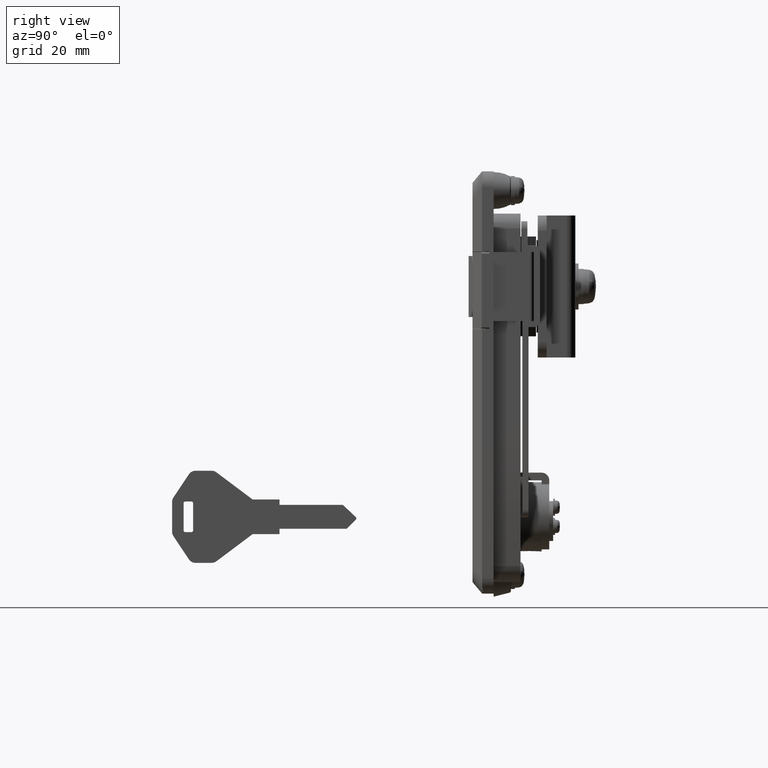
[diagram: clean part render]
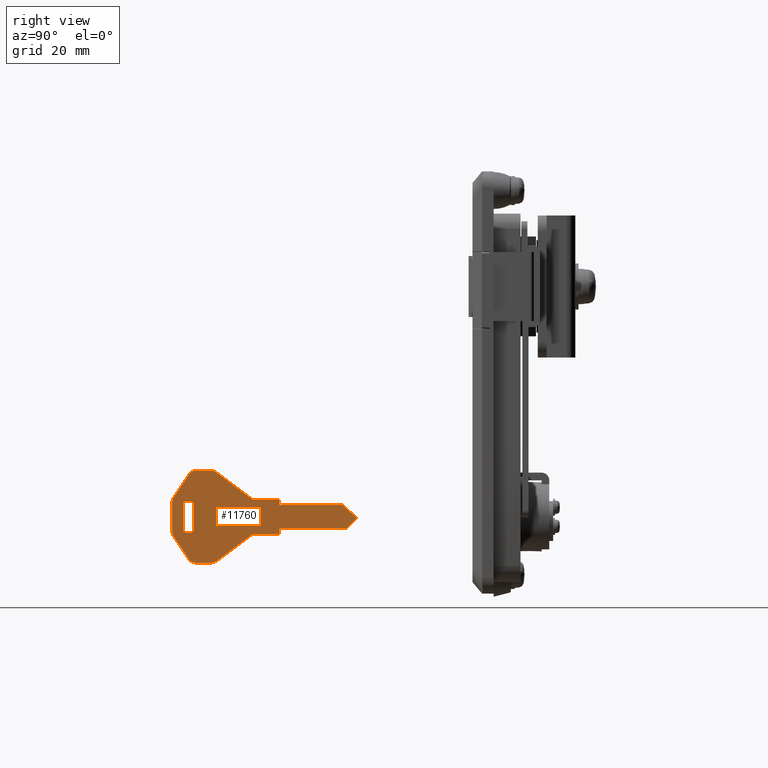
[diagram: same view with one face highlighted and labeled with its STEP entity id]
A machine part, right view. The second image highlights one B-rep face of the part: STEP entity #11760.
In plain terms, the highlighted face is a freeform B-spline surface patch.
Its self-contained STEP definition (entity closure, byte-faithful):
#11079=CARTESIAN_POINT('',(7.899445687218910,-99.565253655180996,-63.499725000000012));
#11080=VERTEX_POINT('',#11079);
#11086=CARTESIAN_POINT('',(7.899445687218901,-99.565253655180996,-56.499724999999998));
#11087=VERTEX_POINT('',#11086);
#11088=CARTESIAN_POINT('',(7.899445687218910,-99.565253655180996,-63.499725000000012));
#11089=CARTESIAN_POINT('',(7.899445687218901,-99.565253655180996,-56.499724999999998));
#11090=QUASI_UNIFORM_CURVE('',1,(#11088,#11089),.UNSPECIFIED.,.F.,.U.);
#11091=EDGE_CURVE('',#11080,#11087,#11090,.T.);
#11128=CARTESIAN_POINT('',(7.899445687218901,-100.065253655181000,-55.999724999999998));
#11129=VERTEX_POINT('',#11128);
#11130=CARTESIAN_POINT('',(7.899445687218901,-100.065253655181000,-55.999724999999998));
#11131=CARTESIAN_POINT('',(7.899445687218906,-100.007988531912700,-55.999697650880123));
#11132=CARTESIAN_POINT('',(7.899445687218900,-99.885274946405019,-56.021015053971396));
#11133=CARTESIAN_POINT('',(7.899445687218902,-99.706307156945030,-56.128103398211472));
#11134=CARTESIAN_POINT('',(7.899445687218904,-99.589298947349633,-56.303352634451670));
#11135=CARTESIAN_POINT('',(7.899445687218908,-99.565237364512569,-56.442463087033573));
#11136=CARTESIAN_POINT('',(7.899445687218901,-99.565253655180996,-56.499724999999998));
#11137=B_SPLINE_CURVE_WITH_KNOTS('',3,(#11130,#11131,#11132,#11133,#11134,#11135,#11136),.UNSPECIFIED.,.F.,.U.,(4,1,1,1,4),(0.000000517787104,0.171819318778003,0.368226022246546,0.613658140791460,0.785476941782583),.UNSPECIFIED.);
#11138=EDGE_CURVE('',#11129,#11087,#11137,.T.);
#11161=CARTESIAN_POINT('',(7.899445687218901,-101.565253655181000,-55.999724999999998));
#11162=VERTEX_POINT('',#11161);
#11163=CARTESIAN_POINT('',(7.899445687218901,-100.065253655181000,-55.999724999999998));
#11164=CARTESIAN_POINT('',(7.899445687218901,-101.565253655181000,-55.999724999999998));
#11165=QUASI_UNIFORM_CURVE('',1,(#11163,#11164),.UNSPECIFIED.,.F.,.U.);
#11166=EDGE_CURVE('',#11129,#11162,#11165,.T.);
#11203=CARTESIAN_POINT('',(7.899445687218901,-102.065253655181000,-56.499724999999998));
#11204=VERTEX_POINT('',#11203);
#11205=CARTESIAN_POINT('',(7.899445687218901,-102.065253655181000,-56.499724999999998));
#11206=CARTESIAN_POINT('',(7.899445687218913,-102.065438710248100,-56.417860551144393));
#11207=CARTESIAN_POINT('',(7.899445687218891,-102.034423087763000,-56.295326507487971));
#11208=CARTESIAN_POINT('',(7.899445687218909,-101.925246480929900,-56.140285597608496));
#11209=CARTESIAN_POINT('',(7.899445687218893,-101.777879887165300,-56.031017119049771));
#11210=CARTESIAN_POINT('',(7.899445687218905,-101.638906176441790,-55.999610051586650));
#11211=CARTESIAN_POINT('',(7.899445687218901,-101.565253655181000,-55.999724999999998));
#11212=B_SPLINE_CURVE_WITH_KNOTS('',3,(#11205,#11206,#11207,#11208,#11209,#11210,#11211),.UNSPECIFIED.,.F.,.U.,(4,1,1,1,4),(0.000000517784462,0.245475628852458,0.368226022245665,0.564557530775347,0.785476941782595),.UNSPECIFIED.);
#11213=EDGE_CURVE('',#11204,#11162,#11212,.T.);
#11236=CARTESIAN_POINT('',(7.899445687218901,-102.065253655181000,-63.499725000000012));
#11237=VERTEX_POINT('',#11236);
#11238=CARTESIAN_POINT('',(7.899445687218901,-102.065253655181000,-56.499724999999998));
#11239=CARTESIAN_POINT('',(7.899445687218901,-102.065253655181000,-63.499725000000012));
#11240=QUASI_UNIFORM_CURVE('',1,(#11238,#11239),.UNSPECIFIED.,.F.,.U.);
#11241=EDGE_CURVE('',#11204,#11237,#11240,.T.);
#11278=CARTESIAN_POINT('',(7.899445687218901,-101.565253655181000,-63.999724999999991));
#11279=VERTEX_POINT('',#11278);
#11280=CARTESIAN_POINT('',(7.899445687218901,-101.565253655181000,-63.999724999999991));
#11281=CARTESIAN_POINT('',(7.899445687218904,-101.622519621201900,-63.999752017777837));
#11282=CARTESIAN_POINT('',(7.899445687218906,-101.745250715717010,-63.978447928996907));
#11283=CARTESIAN_POINT('',(7.899445687218920,-101.909794756006510,-63.879864109005510));
#11284=CARTESIAN_POINT('',(7.899445687218829,-102.033973199008700,-63.712341357420513));
#11285=CARTESIAN_POINT('',(7.899445687218965,-102.065363855647900,-63.573378478761157));
#11286=CARTESIAN_POINT('',(7.899445687218901,-102.065253655181000,-63.499725000000012));
#11287=B_SPLINE_CURVE_WITH_KNOTS('',3,(#11280,#11281,#11282,#11283,#11284,#11285,#11286),.UNSPECIFIED.,.F.,.U.,(4,1,1,1,4),(0.000000517784649,0.171819318775870,0.368226022245225,0.564557530775109,0.785476941782665),.UNSPECIFIED.);
#11288=EDGE_CURVE('',#11279,#11237,#11287,.T.);
#11311=CARTESIAN_POINT('',(7.899445687218901,-100.065253655181000,-63.999724999999991));
#11312=VERTEX_POINT('',#11311);
#11313=CARTESIAN_POINT('',(7.899445687218901,-101.565253655181000,-63.999724999999991));
#11314=CARTESIAN_POINT('',(7.899445687218901,-100.065253655181000,-63.999724999999991));
#11315=QUASI_UNIFORM_CURVE('',1,(#11313,#11314),.UNSPECIFIED.,.F.,.U.);
#11316=EDGE_CURVE('',#11279,#11312,#11315,.T.);
#11351=CARTESIAN_POINT('',(7.899445687218910,-99.565253655180996,-63.499725000000012));
#11352=CARTESIAN_POINT('',(7.899445687218920,-99.565094405689010,-63.581573281145531));
#11353=CARTESIAN_POINT('',(7.899445687218900,-99.600176006260554,-63.720468842337411));
#11354=CARTESIAN_POINT('',(7.899445687218910,-99.727894362645543,-63.884126195466543));
#11355=CARTESIAN_POINT('',(7.899445687218876,-99.885255232002962,-63.978454340177322));
#11356=CARTESIAN_POINT('',(7.899445687218917,-100.007988402895290,-63.999751381121179));
#11357=CARTESIAN_POINT('',(7.899445687218901,-100.065253655181000,-63.999724999999991));
#11358=B_SPLINE_CURVE_WITH_KNOTS('',3,(#11351,#11352,#11353,#11354,#11355,#11356,#11357),.UNSPECIFIED.,.F.,.U.,(4,1,1,1,4),(0.000000517782197,0.245475628850616,0.417251437320790,0.613658140790629,0.785476941782638),.UNSPECIFIED.);
#11359=EDGE_CURVE('',#11080,#11312,#11358,.T.);
#11563=CARTESIAN_POINT('',(7.899445687218910,-54.667722066730363,-46.800925271811479));
#11564=CARTESIAN_POINT('',(7.899445687218910,-107.462851599442100,-46.800925271811479));
#11565=CARTESIAN_POINT('',(7.899445687218910,-54.667722066730363,-73.198525586495379));
#11566=CARTESIAN_POINT('',(7.899445687218910,-107.462851599442100,-73.198525586495379));
#11567=B_SPLINE_SURFACE_WITH_KNOTS('',1,1,((#11563,#11565),(#11564,#11566)),.UNSPECIFIED.,.F.,.F.,.U.,(2,2),(2,2),(0.0,52.795129532711726),(0.0,26.397600314683899),.UNSPECIFIED.);
#11568=CARTESIAN_POINT('',(7.899445687218901,-93.532253589440586,-48.399725049305303));
#11569=VERTEX_POINT('',#11568);
#11570=CARTESIAN_POINT('',(7.899445687218901,-84.065253655180996,-55.499724999999998));
#11571=VERTEX_POINT('',#11570);
#11572=CARTESIAN_POINT('',(7.899445687218901,-93.532253589440586,-48.399725049305303));
#11573=CARTESIAN_POINT('',(7.899445687218901,-84.065253655180996,-55.499724999999998));
#11574=QUASI_UNIFORM_CURVE('',1,(#11572,#11573),.UNSPECIFIED.,.F.,.U.);
#11575=EDGE_CURVE('',#11569,#11571,#11574,.T.);
#11576=ORIENTED_EDGE('',*,*,#11575,.F.);
#11577=CARTESIAN_POINT('',(7.899445687218901,-94.732253655180997,-47.999724999999998));
#11578=VERTEX_POINT('',#11577);
#11579=CARTESIAN_POINT('',(7.899445687218901,-94.732253655180997,-47.999724999999998));
#11580=CARTESIAN_POINT('',(7.899445687218913,-94.450636997793723,-47.999308611247393));
#11581=CARTESIAN_POINT('',(7.899445687218879,-94.022001061403500,-48.091897569617672));
#11582=CARTESIAN_POINT('',(7.899445687218902,-93.650220142032921,-48.311238488892592));
#11583=CARTESIAN_POINT('',(7.899445687218901,-93.532253589440586,-48.399725049305303));
#11584=B_SPLINE_CURVE_WITH_KNOTS('',3,(#11579,#11580,#11581,#11582,#11583),.UNSPECIFIED.,.F.,.U.,(4,1,4),(0.000000041424976,0.844606440711671,1.287023981679187),.UNSPECIFIED.);
#11585=EDGE_CURVE('',#11578,#11569,#11584,.T.);
#11586=ORIENTED_EDGE('',*,*,#11585,.F.);
#11587=CARTESIAN_POINT('',(7.899445687218901,-98.995253655181003,-47.999724999999998));
#11588=VERTEX_POINT('',#11587);
#11589=CARTESIAN_POINT('',(7.899445687218901,-98.995253655181003,-47.999724999999998));
#11590=CARTESIAN_POINT('',(7.899445687218901,-94.732253655180997,-47.999724999999998));
#11591=QUASI_UNIFORM_CURVE('',1,(#11589,#11590),.UNSPECIFIED.,.F.,.U.);
#11592=EDGE_CURVE('',#11588,#11578,#11591,.T.);
#11593=ORIENTED_EDGE('',*,*,#11592,.F.);
#11594=CARTESIAN_POINT('',(7.899445687218901,-100.678499151901210,-48.919593249808599));
#11595=VERTEX_POINT('',#11594);
#11596=CARTESIAN_POINT('',(7.899445687218901,-100.678499151901210,-48.919593249808599));
#11597=CARTESIAN_POINT('',(7.899445687218899,-100.588498582817910,-48.779256068162603));
#11598=CARTESIAN_POINT('',(7.899445687218910,-100.373110182465600,-48.521316834087663));
#11599=CARTESIAN_POINT('',(7.899445687218906,-100.015493776608000,-48.263191893965072));
#11600=CARTESIAN_POINT('',(7.899445687218895,-99.557811033130335,-48.057718610520567));
#11601=CARTESIAN_POINT('',(7.899445687218912,-99.224514954701533,-47.999544480960743));
#11602=CARTESIAN_POINT('',(7.899445687218901,-98.995253655181003,-47.999724999999998));
#11603=B_SPLINE_CURVE_WITH_KNOTS('',3,(#11596,#11597,#11598,#11599,#11600,#11601,#11602),.UNSPECIFIED.,.F.,.U.,(4,1,1,1,4),(0.000000042009811,0.500161156876246,1.000321730914630,1.312921610874945,2.000643313157908),.UNSPECIFIED.);
#11604=EDGE_CURVE('',#11595,#11588,#11603,.T.);
#11605=ORIENTED_EDGE('',*,*,#11604,.F.);
#11606=CARTESIAN_POINT('',(7.899445687218901,-104.729354327725400,-54.995875733352513));
#11607=VERTEX_POINT('',#11606);
#11608=CARTESIAN_POINT('',(7.899445687218901,-104.729354327725400,-54.995875733352513));
#11609=CARTESIAN_POINT('',(7.899445687218901,-100.678499151901210,-48.919593249808599));
#11610=QUASI_UNIFORM_CURVE('',1,(#11608,#11609),.UNSPECIFIED.,.F.,.U.);
#11611=EDGE_CURVE('',#11607,#11595,#11610,.T.);
#11612=ORIENTED_EDGE('',*,*,#11611,.F.);
#11613=CARTESIAN_POINT('',(7.899445687218901,-105.065253655181000,-56.105276000000003));
#11614=VERTEX_POINT('',#11613);
#11615=CARTESIAN_POINT('',(7.899445687218901,-105.065253655181000,-56.105276000000003));
#11616=CARTESIAN_POINT('',(7.899445687218909,-105.065368934670600,-55.897016767867910));
#11617=CARTESIAN_POINT('',(7.899445687218894,-105.003426180842200,-55.505094685275473));
#11618=CARTESIAN_POINT('',(7.899445687218906,-104.831338420844400,-55.148741384742102));
#11619=CARTESIAN_POINT('',(7.899445687218901,-104.729354327725400,-54.995875733352513));
#11620=B_SPLINE_CURVE_WITH_KNOTS('',3,(#11615,#11616,#11617,#11618,#11619),.UNSPECIFIED.,.F.,.U.,(4,1,4),(0.000000033238872,0.624744481152896,1.176021598305741),.UNSPECIFIED.);
#11621=EDGE_CURVE('',#11614,#11607,#11620,.T.);
#11622=ORIENTED_EDGE('',*,*,#11621,.F.);
#11623=CARTESIAN_POINT('',(7.899445687218901,-105.065253655181000,-63.894724999999902));
#11624=VERTEX_POINT('',#11623);
#11625=CARTESIAN_POINT('',(7.899445687218901,-105.065253655181000,-63.894724999999902));
#11626=CARTESIAN_POINT('',(7.899445687218901,-105.065253655181000,-56.105276000000003));
#11627=QUASI_UNIFORM_CURVE('',1,(#11625,#11626),.UNSPECIFIED.,.F.,.U.);
#11628=EDGE_CURVE('',#11624,#11614,#11627,.T.);
#11629=ORIENTED_EDGE('',*,*,#11628,.F.);
#11630=CARTESIAN_POINT('',(7.899445687218901,-104.748580243862190,-64.974730368430599));
#11631=VERTEX_POINT('',#11630);
#11632=CARTESIAN_POINT('',(7.899445687218901,-104.748580243862190,-64.974730368430599));
#11633=CARTESIAN_POINT('',(7.899445687218911,-104.838460802371400,-64.834714176190403));
#11634=CARTESIAN_POINT('',(7.899445687218895,-105.003614833124600,-64.488854563090428));
#11635=CARTESIAN_POINT('',(7.899445687218903,-105.065372497854100,-64.108654809465875));
#11636=CARTESIAN_POINT('',(7.899445687218901,-105.065253655181000,-63.894724999999902));
#11637=B_SPLINE_CURVE_WITH_KNOTS('',3,(#11632,#11633,#11634,#11635,#11636),.UNSPECIFIED.,.F.,.U.,(4,1,4),(0.000000028568121,0.499147426584967,1.140895701261231),.UNSPECIFIED.);
#11638=EDGE_CURVE('',#11631,#11624,#11637,.T.);
#11639=ORIENTED_EDGE('',*,*,#11638,.F.);
#11640=CARTESIAN_POINT('',(7.899445687218901,-100.659253655181000,-71.109724999999898));
#11641=VERTEX_POINT('',#11640);
#11642=CARTESIAN_POINT('',(7.899445687218901,-100.659253655181000,-71.109724999999898));
#11643=CARTESIAN_POINT('',(7.899445687218901,-104.748580243862190,-64.974730368430599));
#11644=QUASI_UNIFORM_CURVE('',1,(#11642,#11643),.UNSPECIFIED.,.F.,.U.);
#11645=EDGE_CURVE('',#11641,#11631,#11644,.T.);
#11646=ORIENTED_EDGE('',*,*,#11645,.F.);
#11647=CARTESIAN_POINT('',(7.899445687218901,-98.995253655181003,-71.999724999999998));
#11648=VERTEX_POINT('',#11647);
#11649=CARTESIAN_POINT('',(7.899445687218901,-98.995253655181003,-71.999724999999998));
#11650=CARTESIAN_POINT('',(7.899445687218888,-99.261440291991832,-72.000171465554516));
#11651=CARTESIAN_POINT('',(7.899445687218917,-99.752598685129058,-71.900560100145469));
#11652=CARTESIAN_POINT('',(7.899445687218908,-100.312756773521100,-71.543056259920064));
#11653=CARTESIAN_POINT('',(7.899445687218906,-100.568435695150600,-71.246012501601101));
#11654=CARTESIAN_POINT('',(7.899445687218901,-100.659253655181000,-71.109724999999898));
#11655=B_SPLINE_CURVE_WITH_KNOTS('',3,(#11649,#11650,#11651,#11652,#11653,#11654),.UNSPECIFIED.,.F.,.U.,(4,1,1,4),(0.000000065568228,0.798450553875622,1.474039540137383,1.965386031659953),.UNSPECIFIED.);
#11656=EDGE_CURVE('',#11648,#11641,#11655,.T.);
#11657=ORIENTED_EDGE('',*,*,#11656,.F.);
#11658=CARTESIAN_POINT('',(7.899445687218901,-94.732253655180997,-71.999724999999998));
#11659=VERTEX_POINT('',#11658);
#11660=CARTESIAN_POINT('',(7.899445687218901,-94.732253655180997,-71.999724999999998));
#11661=CARTESIAN_POINT('',(7.899445687218901,-98.995253655181003,-71.999724999999998));
#11662=QUASI_UNIFORM_CURVE('',1,(#11660,#11661),.UNSPECIFIED.,.F.,.U.);
#11663=EDGE_CURVE('',#11659,#11648,#11662,.T.);
#11664=ORIENTED_EDGE('',*,*,#11663,.F.);
#11665=CARTESIAN_POINT('',(7.899445687218901,-93.532253655181009,-71.599724999999893));
#11666=VERTEX_POINT('',#11665);
#11667=CARTESIAN_POINT('',(7.899445687218901,-93.532253655181009,-71.599724999999893));
#11668=CARTESIAN_POINT('',(7.899445687218910,-93.714501341933499,-71.736593278867559));
#11669=CARTESIAN_POINT('',(7.899445687218879,-94.102199093079449,-71.934466482165547));
#11670=CARTESIAN_POINT('',(7.899445687218929,-94.531144976747754,-71.999816044702001));
#11671=CARTESIAN_POINT('',(7.899445687218901,-94.732253655180997,-71.999724999999998));
#11672=B_SPLINE_CURVE_WITH_KNOTS('',3,(#11667,#11668,#11669,#11670,#11671),.UNSPECIFIED.,.F.,.U.,(4,1,4),(0.000000041425723,0.683714159386751,1.287023899499553),.UNSPECIFIED.);
#11673=EDGE_CURVE('',#11666,#11659,#11672,.T.);
#11674=ORIENTED_EDGE('',*,*,#11673,.F.);
#11675=CARTESIAN_POINT('',(7.899445687218901,-84.065253655180996,-64.499724999999998));
#11676=VERTEX_POINT('',#11675);
#11677=CARTESIAN_POINT('',(7.899445687218901,-84.065253655180996,-64.499724999999998));
#11678=CARTESIAN_POINT('',(7.899445687218901,-93.532253655181009,-71.599724999999893));
#11679=QUASI_UNIFORM_CURVE('',1,(#11677,#11678),.UNSPECIFIED.,.F.,.U.);
#11680=EDGE_CURVE('',#11676,#11666,#11679,.T.);
#11681=ORIENTED_EDGE('',*,*,#11680,.F.);
#11682=CARTESIAN_POINT('',(7.899445687218901,-77.065253655180996,-64.499724999999998));
#11683=VERTEX_POINT('',#11682);
#11684=CARTESIAN_POINT('',(7.899445687218901,-77.065253655180996,-64.499724999999998));
#11685=CARTESIAN_POINT('',(7.899445687218901,-84.065253655180996,-64.499724999999998));
#11686=QUASI_UNIFORM_CURVE('',1,(#11684,#11685),.UNSPECIFIED.,.F.,.U.);
#11687=EDGE_CURVE('',#11683,#11676,#11686,.T.);
#11688=ORIENTED_EDGE('',*,*,#11687,.F.);
#11689=CARTESIAN_POINT('',(7.899445687218901,-77.065253655180996,-63.099724999999900));
#11690=VERTEX_POINT('',#11689);
#11691=CARTESIAN_POINT('',(7.899445687218901,-77.065253655180996,-63.099724999999900));
#11692=CARTESIAN_POINT('',(7.899445687218901,-77.065253655180996,-64.499724999999998));
#11693=QUASI_UNIFORM_CURVE('',1,(#11691,#11692),.UNSPECIFIED.,.F.,.U.);
#11694=EDGE_CURVE('',#11690,#11683,#11693,.T.);
#11695=ORIENTED_EDGE('',*,*,#11694,.F.);
#11696=CARTESIAN_POINT('',(7.899445687218901,-59.565253655181102,-63.099724999999900));
#11697=VERTEX_POINT('',#11696);
#11698=CARTESIAN_POINT('',(7.899445687218901,-59.565253655181102,-63.099724999999900));
#11699=CARTESIAN_POINT('',(7.899445687218901,-77.065253655180996,-63.099724999999900));
#11700=QUASI_UNIFORM_CURVE('',1,(#11698,#11699),.UNSPECIFIED.,.F.,.U.);
#11701=EDGE_CURVE('',#11697,#11690,#11700,.T.);
#11702=ORIENTED_EDGE('',*,*,#11701,.F.);
#11703=CARTESIAN_POINT('',(7.899445687218901,-57.218413193952003,-60.759866214601097));
#11704=VERTEX_POINT('',#11703);
#11705=CARTESIAN_POINT('',(7.899445687218901,-57.218413193952003,-60.759866214601097));
#11706=CARTESIAN_POINT('',(7.899445687218901,-59.565253655181102,-63.099724999999900));
#11707=QUASI_UNIFORM_CURVE('',1,(#11705,#11706),.UNSPECIFIED.,.F.,.U.);
#11708=EDGE_CURVE('',#11704,#11697,#11707,.T.);
#11709=ORIENTED_EDGE('',*,*,#11708,.F.);
#11710=CARTESIAN_POINT('',(7.899445687218901,-57.206538735987102,-60.051409615976112));
#11711=VERTEX_POINT('',#11710);
#11712=CARTESIAN_POINT('',(7.899445687218901,-57.206538735987102,-60.051409615976112));
#11713=CARTESIAN_POINT('',(7.899445687218903,-57.166523004394747,-60.092580328285258));
#11714=CARTESIAN_POINT('',(7.899445687218904,-57.096164279398209,-60.195783855146317));
#11715=CARTESIAN_POINT('',(7.899445687218907,-57.052410734757977,-60.383076153743332));
#11716=CARTESIAN_POINT('',(7.899445687218881,-57.086683940591158,-60.589343542033980));
#11717=CARTESIAN_POINT('',(7.899445687218934,-57.165146150663901,-60.708720283529182));
#11718=CARTESIAN_POINT('',(7.899445687218901,-57.218413193952003,-60.759866214601097));
#11719=B_SPLINE_CURVE_WITH_KNOTS('',3,(#11712,#11713,#11714,#11715,#11716,#11717,#11718),.UNSPECIFIED.,.F.,.U.,(4,1,1,1,4),(0.000000524428813,0.172268247402181,0.369188329697262,0.566032645711528,0.787529321047493),.UNSPECIFIED.);
#11720=EDGE_CURVE('',#11711,#11704,#11719,.T.);
#11721=ORIENTED_EDGE('',*,*,#11720,.F.);
#11722=CARTESIAN_POINT('',(7.899445687218901,-60.565253655181003,-56.899724999999997));
#11723=VERTEX_POINT('',#11722);
#11724=CARTESIAN_POINT('',(7.899445687218901,-60.565253655181003,-56.899724999999997));
#11725=CARTESIAN_POINT('',(7.899445687218901,-57.206538735987102,-60.051409615976112));
#11726=QUASI_UNIFORM_CURVE('',1,(#11724,#11725),.UNSPECIFIED.,.F.,.U.);
#11727=EDGE_CURVE('',#11723,#11711,#11726,.T.);
#11728=ORIENTED_EDGE('',*,*,#11727,.F.);
#11729=CARTESIAN_POINT('',(7.899445687218901,-77.065253655180996,-56.899724999999997));
#11730=VERTEX_POINT('',#11729);
#11731=CARTESIAN_POINT('',(7.899445687218901,-77.065253655180996,-56.899724999999997));
#11732=CARTESIAN_POINT('',(7.899445687218901,-60.565253655181003,-56.899724999999997));
#11733=QUASI_UNIFORM_CURVE('',1,(#11731,#11732),.UNSPECIFIED.,.F.,.U.);
#11734=EDGE_CURVE('',#11730,#11723,#11733,.T.);
#11735=ORIENTED_EDGE('',*,*,#11734,.F.);
#11736=CARTESIAN_POINT('',(7.899445687218901,-77.065253655180996,-55.499724999999998));
#11737=VERTEX_POINT('',#11736);
#11738=CARTESIAN_POINT('',(7.899445687218901,-77.065253655180996,-55.499724999999998));
#11739=CARTESIAN_POINT('',(7.899445687218901,-77.065253655180996,-56.899724999999997));
#11740=QUASI_UNIFORM_CURVE('',1,(#11738,#11739),.UNSPECIFIED.,.F.,.U.);
#11741=EDGE_CURVE('',#11737,#11730,#11740,.T.);
#11742=ORIENTED_EDGE('',*,*,#11741,.F.);
#11743=CARTESIAN_POINT('',(7.899445687218901,-84.065253655180996,-55.499724999999998));
#11744=CARTESIAN_POINT('',(7.899445687218901,-77.065253655180996,-55.499724999999998));
#11745=QUASI_UNIFORM_CURVE('',1,(#11743,#11744),.UNSPECIFIED.,.F.,.U.);
#11746=EDGE_CURVE('',#11571,#11737,#11745,.T.);
#11747=ORIENTED_EDGE('',*,*,#11746,.F.);
#11748=EDGE_LOOP('',(#11576,#11586,#11593,#11605,#11612,#11622,#11629,#11639,#11646,#11657,#11664,#11674,#11681,#11688,#11695,#11702,#11709,#11721,#11728,#11735,#11742,#11747));
#11749=FACE_OUTER_BOUND('',#11748,.T.);
#11750=ORIENTED_EDGE('',*,*,#11091,.F.);
#11751=ORIENTED_EDGE('',*,*,#11359,.T.);
#11752=ORIENTED_EDGE('',*,*,#11316,.F.);
#11753=ORIENTED_EDGE('',*,*,#11288,.T.);
#11754=ORIENTED_EDGE('',*,*,#11241,.F.);
#11755=ORIENTED_EDGE('',*,*,#11213,.T.);
#11756=ORIENTED_EDGE('',*,*,#11166,.F.);
#11757=ORIENTED_EDGE('',*,*,#11138,.T.);
#11758=EDGE_LOOP('',(#11750,#11751,#11752,#11753,#11754,#11755,#11756,#11757));
#11759=FACE_BOUND('',#11758,.T.);
#11760=ADVANCED_FACE('',(#11749,#11759),#11567,.T.);